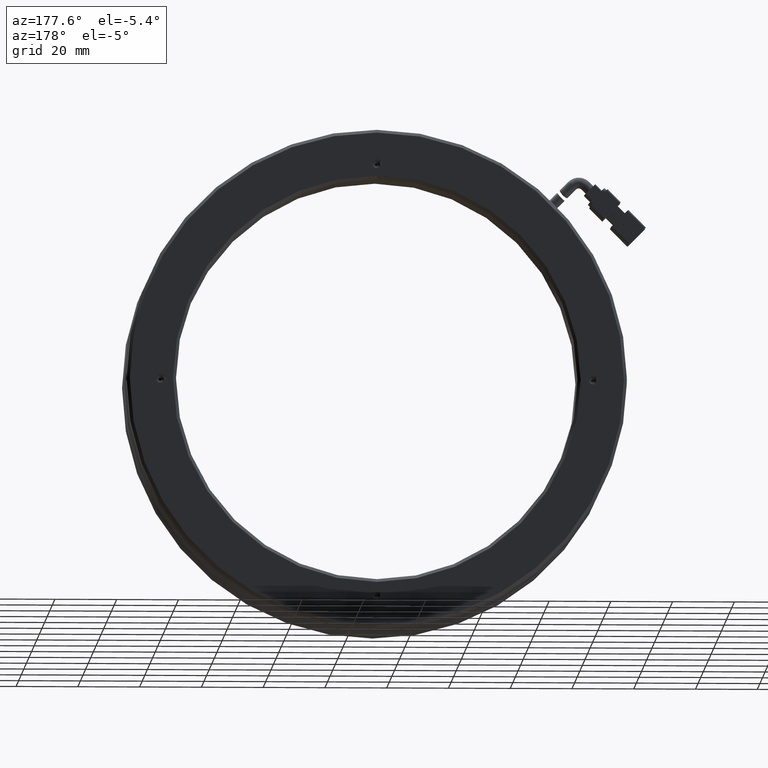
[diagram: clean part render]
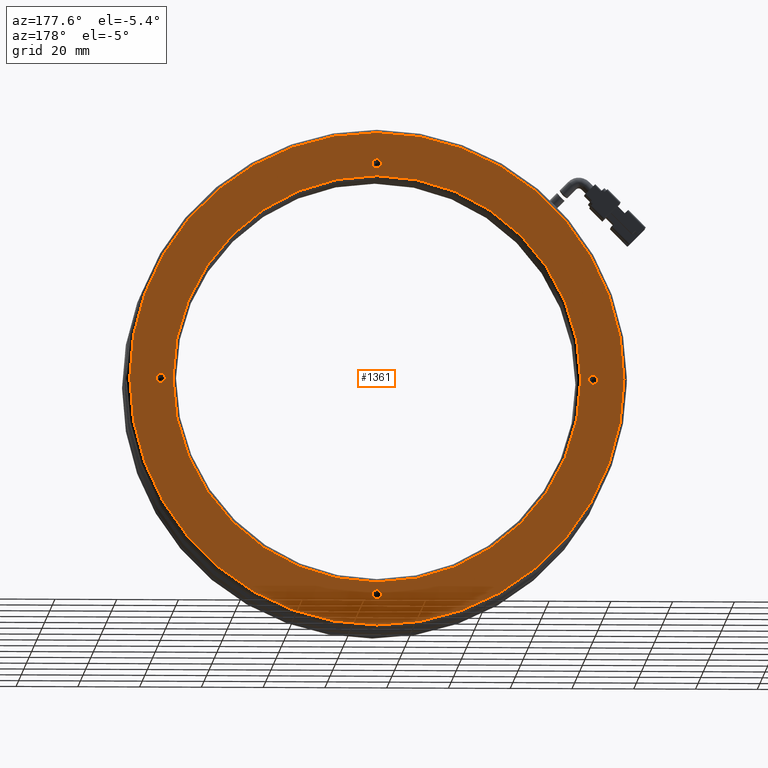
[diagram: same view with one face highlighted and labeled with its STEP entity id]
A machine part, auxiliary view. The second image highlights one B-rep face of the part: STEP entity #1361.
In plain terms, the highlighted planar face has unit normal (0, -1, 0).
Its self-contained STEP definition (entity closure, byte-faithful):
#146 = CIRCLE ( 'NONE', #11437, 1.500000000000001300 ) ;
#177 = EDGE_CURVE ( 'NONE', #4030, #13091, #6820, .T. ) ;
#268 = DIRECTION ( 'NONE',  ( -0.0000000000000000000, 1.000000000000000000, -0.0000000000000000000 ) ) ;
#553 = CARTESIAN_POINT ( 'NONE',  ( 60.21497773311997300, 27.87111437184006100, 7.285131839178515600E-013 ) ) ;
#617 = FACE_BOUND ( 'NONE', #6990, .T. ) ;
#826 = DIRECTION ( 'NONE',  ( 0.0000000000000000000, -1.000000000000000000, 0.0000000000000000000 ) ) ;
#871 = CIRCLE ( 'NONE', #11411, 1.500000000000001300 ) ;
#919 = CARTESIAN_POINT ( 'NONE',  ( -90.78502226688003400, 27.87111437184006100, 0.0000000000000000000 ) ) ;
#1065 = DIRECTION ( 'NONE',  ( 0.0000000000000000000, -0.0000000000000000000, -1.000000000000000000 ) ) ;
#1359 = CARTESIAN_POINT ( 'NONE',  ( -9.785022266880036000, 27.87111437184006100, 0.0000000000000000000 ) ) ;
#1361 = ADVANCED_FACE ( 'NONE', ( #10657, #1640, #5942, #12042, #617, #4811 ), #1608, .F. ) ;
#1447 = CARTESIAN_POINT ( 'NONE',  ( -9.785022266880027100, 27.87111437184006100, -66.00000000000001400 ) ) ;
#1608 = PLANE ( 'NONE',  #1862 ) ;
#1621 = DIRECTION ( 'NONE',  ( 0.0000000000000000000, 0.0000000000000000000, 1.000000000000000000 ) ) ;
#1640 = FACE_BOUND ( 'NONE', #10889, .T. ) ;
#1681 = ORIENTED_EDGE ( 'NONE', *, *, #10054, .F. ) ;
#1749 = CARTESIAN_POINT ( 'NONE',  ( -9.785022266880036000, 27.87111437184006100, 0.0000000000000000000 ) ) ;
#1795 = DIRECTION ( 'NONE',  ( -0.0000000000000000000, 1.000000000000000000, 0.0000000000000000000 ) ) ;
#1807 = DIRECTION ( 'NONE',  ( 0.0000000000000000000, 0.0000000000000000000, 1.000000000000000000 ) ) ;
#1862 = AXIS2_PLACEMENT_3D ( 'NONE', #919, #826, #1065 ) ;
#2175 = EDGE_CURVE ( 'NONE', #10589, #4550, #4237, .T. ) ;
#2266 = EDGE_CURVE ( 'NONE', #13091, #4030, #6411, .T. ) ;
#2411 = DIRECTION ( 'NONE',  ( 0.0000000000000000000, -1.000000000000000000, 0.0000000000000000000 ) ) ;
#2456 = CIRCLE ( 'NONE', #7142, 1.500000000000001300 ) ;
#2543 = VERTEX_POINT ( 'NONE', #12966 ) ;
#2574 = CARTESIAN_POINT ( 'NONE',  ( -9.785022266879552800, 27.87111437184006100, -68.50000000000000000 ) ) ;
#2923 = AXIS2_PLACEMENT_3D ( 'NONE', #8476, #8486, #8498 ) ;
#2989 = EDGE_LOOP ( 'NONE', ( #6821, #12664 ) ) ;
#3143 = CARTESIAN_POINT ( 'NONE',  ( -9.785022266880025300, 27.87111437184006100, 79.99999999999998600 ) ) ;
#3155 = DIRECTION ( 'NONE',  ( -0.0000000000000000000, 1.000000000000000000, -0.0000000000000000000 ) ) ;
#3180 = EDGE_CURVE ( 'NONE', #6472, #2543, #8813, .T. ) ;
#3268 = VERTEX_POINT ( 'NONE', #4002 ) ;
#3677 = CARTESIAN_POINT ( 'NONE',  ( -9.785022266880036000, 27.87111437184006100, -79.99999999999998600 ) ) ;
#3687 = CARTESIAN_POINT ( 'NONE',  ( -9.785022266880036000, 27.87111437184006100, 0.0000000000000000000 ) ) ;
#3726 = DIRECTION ( 'NONE',  ( 0.0000000000000000000, -1.000000000000000000, 0.0000000000000000000 ) ) ;
#3767 = DIRECTION ( 'NONE',  ( 0.0000000000000000000, 0.0000000000000000000, -1.000000000000000000 ) ) ;
#3820 = DIRECTION ( 'NONE',  ( 0.0000000000000000000, 0.0000000000000000000, 1.000000000000000000 ) ) ;
#3855 = VERTEX_POINT ( 'NONE', #4200 ) ;
#3865 = EDGE_CURVE ( 'NONE', #3268, #6373, #5016, .T. ) ;
#3937 = DIRECTION ( 'NONE',  ( 0.0000000000000000000, 0.0000000000000000000, 1.000000000000000000 ) ) ;
#4002 = CARTESIAN_POINT ( 'NONE',  ( -79.78502226688004800, 27.87111437184006100, 1.499999999999761700 ) ) ;
#4026 = CARTESIAN_POINT ( 'NONE',  ( -9.785022266879552800, 27.87111437184006100, -70.00000000000000000 ) ) ;
#4030 = VERTEX_POINT ( 'NONE', #3677 ) ;
#4083 = DIRECTION ( 'NONE',  ( -0.0000000000000000000, 1.000000000000000000, -0.0000000000000000000 ) ) ;
#4115 = ORIENTED_EDGE ( 'NONE', *, *, #177, .F. ) ;
#4200 = CARTESIAN_POINT ( 'NONE',  ( -9.785022266880030600, 27.87111437184006100, 71.50000000000001400 ) ) ;
#4207 = DIRECTION ( 'NONE',  ( 0.0000000000000000000, 0.0000000000000000000, -1.000000000000000000 ) ) ;
#4237 = CIRCLE ( 'NONE', #12130, 66.00000000000001400 ) ;
#4433 = CARTESIAN_POINT ( 'NONE',  ( -79.78502226688004800, 27.87111437184006100, -2.397057964798127900E-013 ) ) ;
#4550 = VERTEX_POINT ( 'NONE', #12746 ) ;
#4701 = AXIS2_PLACEMENT_3D ( 'NONE', #553, #7664, #1621 ) ;
#4795 = DIRECTION ( 'NONE',  ( -0.0000000000000000000, 1.000000000000000000, -0.0000000000000000000 ) ) ;
#4811 = FACE_BOUND ( 'NONE', #5146, .T. ) ;
#5016 = CIRCLE ( 'NONE', #9858, 1.500000000000001300 ) ;
#5146 = EDGE_LOOP ( 'NONE', ( #8654, #1681 ) ) ;
#5356 = AXIS2_PLACEMENT_3D ( 'NONE', #4026, #3155, #3937 ) ;
#5402 = ORIENTED_EDGE ( 'NONE', *, *, #2266, .F. ) ;
#5795 = CIRCLE ( 'NONE', #4701, 1.500000000000001300 ) ;
#5884 = CARTESIAN_POINT ( 'NONE',  ( -9.785022266880030600, 27.87111437184006100, 70.00000000000000000 ) ) ;
#5887 = EDGE_CURVE ( 'NONE', #6149, #8087, #2456, .T. ) ;
#5942 = FACE_BOUND ( 'NONE', #12464, .T. ) ;
#6149 = VERTEX_POINT ( 'NONE', #2574 ) ;
#6373 = VERTEX_POINT ( 'NONE', #10928 ) ;
#6411 = CIRCLE ( 'NONE', #11377, 79.99999999999998600 ) ;
#6472 = VERTEX_POINT ( 'NONE', #6618 ) ;
#6618 = CARTESIAN_POINT ( 'NONE',  ( 60.21497773311997300, 27.87111437184006100, 1.500000000000729900 ) ) ;
#6820 = CIRCLE ( 'NONE', #7307, 79.99999999999998600 ) ;
#6821 = ORIENTED_EDGE ( 'NONE', *, *, #3865, .F. ) ;
#6857 = DIRECTION ( 'NONE',  ( 0.0000000000000000000, 0.0000000000000000000, 1.000000000000000000 ) ) ;
#6990 = EDGE_LOOP ( 'NONE', ( #7741, #12220 ) ) ;
#7142 = AXIS2_PLACEMENT_3D ( 'NONE', #9306, #10585, #9333 ) ;
#7170 = ORIENTED_EDGE ( 'NONE', *, *, #10471, .F. ) ;
#7209 = DIRECTION ( 'NONE',  ( 0.0000000000000000000, 0.0000000000000000000, 1.000000000000000000 ) ) ;
#7307 = AXIS2_PLACEMENT_3D ( 'NONE', #1359, #2411, #4207 ) ;
#7351 = DIRECTION ( 'NONE',  ( -0.0000000000000000000, 1.000000000000000000, 0.0000000000000000000 ) ) ;
#7389 = CARTESIAN_POINT ( 'NONE',  ( -9.785022266880036000, 27.87111437184006100, 0.0000000000000000000 ) ) ;
#7390 = DIRECTION ( 'NONE',  ( 0.0000000000000000000, 0.0000000000000000000, 1.000000000000000000 ) ) ;
#7585 = EDGE_CURVE ( 'NONE', #4550, #10589, #12667, .T. ) ;
#7664 = DIRECTION ( 'NONE',  ( -0.0000000000000000000, 1.000000000000000000, -0.0000000000000000000 ) ) ;
#7741 = ORIENTED_EDGE ( 'NONE', *, *, #5887, .F. ) ;
#7847 = EDGE_CURVE ( 'NONE', #8087, #6149, #10420, .T. ) ;
#8087 = VERTEX_POINT ( 'NONE', #9433 ) ;
#8451 = EDGE_CURVE ( 'NONE', #6373, #3268, #871, .T. ) ;
#8476 = CARTESIAN_POINT ( 'NONE',  ( 60.21497773311997300, 27.87111437184006100, 7.285131839178515600E-013 ) ) ;
#8486 = DIRECTION ( 'NONE',  ( -0.0000000000000000000, 1.000000000000000000, -0.0000000000000000000 ) ) ;
#8498 = DIRECTION ( 'NONE',  ( 0.0000000000000000000, 0.0000000000000000000, 1.000000000000000000 ) ) ;
#8500 = AXIS2_PLACEMENT_3D ( 'NONE', #5884, #12911, #6857 ) ;
#8595 = AXIS2_PLACEMENT_3D ( 'NONE', #7389, #7351, #7209 ) ;
#8637 = DIRECTION ( 'NONE',  ( 0.0000000000000000000, 0.0000000000000000000, 1.000000000000000000 ) ) ;
#8654 = ORIENTED_EDGE ( 'NONE', *, *, #3180, .F. ) ;
#8813 = CIRCLE ( 'NONE', #2923, 1.500000000000001300 ) ;
#9306 = CARTESIAN_POINT ( 'NONE',  ( -9.785022266879552800, 27.87111437184006100, -70.00000000000000000 ) ) ;
#9333 = DIRECTION ( 'NONE',  ( 0.0000000000000000000, 0.0000000000000000000, 1.000000000000000000 ) ) ;
#9433 = CARTESIAN_POINT ( 'NONE',  ( -9.785022266879552800, 27.87111437184006100, -71.50000000000001400 ) ) ;
#9449 = EDGE_LOOP ( 'NONE', ( #4115, #5402 ) ) ;
#9695 = CIRCLE ( 'NONE', #8500, 1.500000000000001300 ) ;
#9858 = AXIS2_PLACEMENT_3D ( 'NONE', #13054, #4795, #8637 ) ;
#9953 = ORIENTED_EDGE ( 'NONE', *, *, #2175, .F. ) ;
#10054 = EDGE_CURVE ( 'NONE', #2543, #6472, #5795, .T. ) ;
#10372 = CARTESIAN_POINT ( 'NONE',  ( -9.785022266880030600, 27.87111437184006100, 68.50000000000000000 ) ) ;
#10420 = CIRCLE ( 'NONE', #5356, 1.500000000000001300 ) ;
#10471 = EDGE_CURVE ( 'NONE', #11540, #3855, #146, .T. ) ;
#10585 = DIRECTION ( 'NONE',  ( -0.0000000000000000000, 1.000000000000000000, -0.0000000000000000000 ) ) ;
#10589 = VERTEX_POINT ( 'NONE', #1447 ) ;
#10657 = FACE_OUTER_BOUND ( 'NONE', #9449, .T. ) ;
#10889 = EDGE_LOOP ( 'NONE', ( #12332, #9953 ) ) ;
#10928 = CARTESIAN_POINT ( 'NONE',  ( -79.78502226688004800, 27.87111437184006100, -1.500000000000240900 ) ) ;
#11027 = EDGE_CURVE ( 'NONE', #3855, #11540, #9695, .T. ) ;
#11377 = AXIS2_PLACEMENT_3D ( 'NONE', #3687, #3726, #3767 ) ;
#11411 = AXIS2_PLACEMENT_3D ( 'NONE', #4433, #4083, #3820 ) ;
#11437 = AXIS2_PLACEMENT_3D ( 'NONE', #11882, #268, #7390 ) ;
#11540 = VERTEX_POINT ( 'NONE', #10372 ) ;
#11882 = CARTESIAN_POINT ( 'NONE',  ( -9.785022266880030600, 27.87111437184006100, 70.00000000000000000 ) ) ;
#12042 = FACE_BOUND ( 'NONE', #2989, .T. ) ;
#12063 = ORIENTED_EDGE ( 'NONE', *, *, #11027, .F. ) ;
#12130 = AXIS2_PLACEMENT_3D ( 'NONE', #1749, #1795, #1807 ) ;
#12220 = ORIENTED_EDGE ( 'NONE', *, *, #7847, .F. ) ;
#12332 = ORIENTED_EDGE ( 'NONE', *, *, #7585, .F. ) ;
#12464 = EDGE_LOOP ( 'NONE', ( #12063, #7170 ) ) ;
#12664 = ORIENTED_EDGE ( 'NONE', *, *, #8451, .F. ) ;
#12667 = CIRCLE ( 'NONE', #8595, 66.00000000000001400 ) ;
#12746 = CARTESIAN_POINT ( 'NONE',  ( -9.785022266880036000, 27.87111437184006100, 66.00000000000001400 ) ) ;
#12911 = DIRECTION ( 'NONE',  ( -0.0000000000000000000, 1.000000000000000000, -0.0000000000000000000 ) ) ;
#12966 = CARTESIAN_POINT ( 'NONE',  ( 60.21497773311997300, 27.87111437184006100, -1.499999999999272800 ) ) ;
#13054 = CARTESIAN_POINT ( 'NONE',  ( -79.78502226688004800, 27.87111437184006100, -2.397057964798127900E-013 ) ) ;
#13091 = VERTEX_POINT ( 'NONE', #3143 ) ;